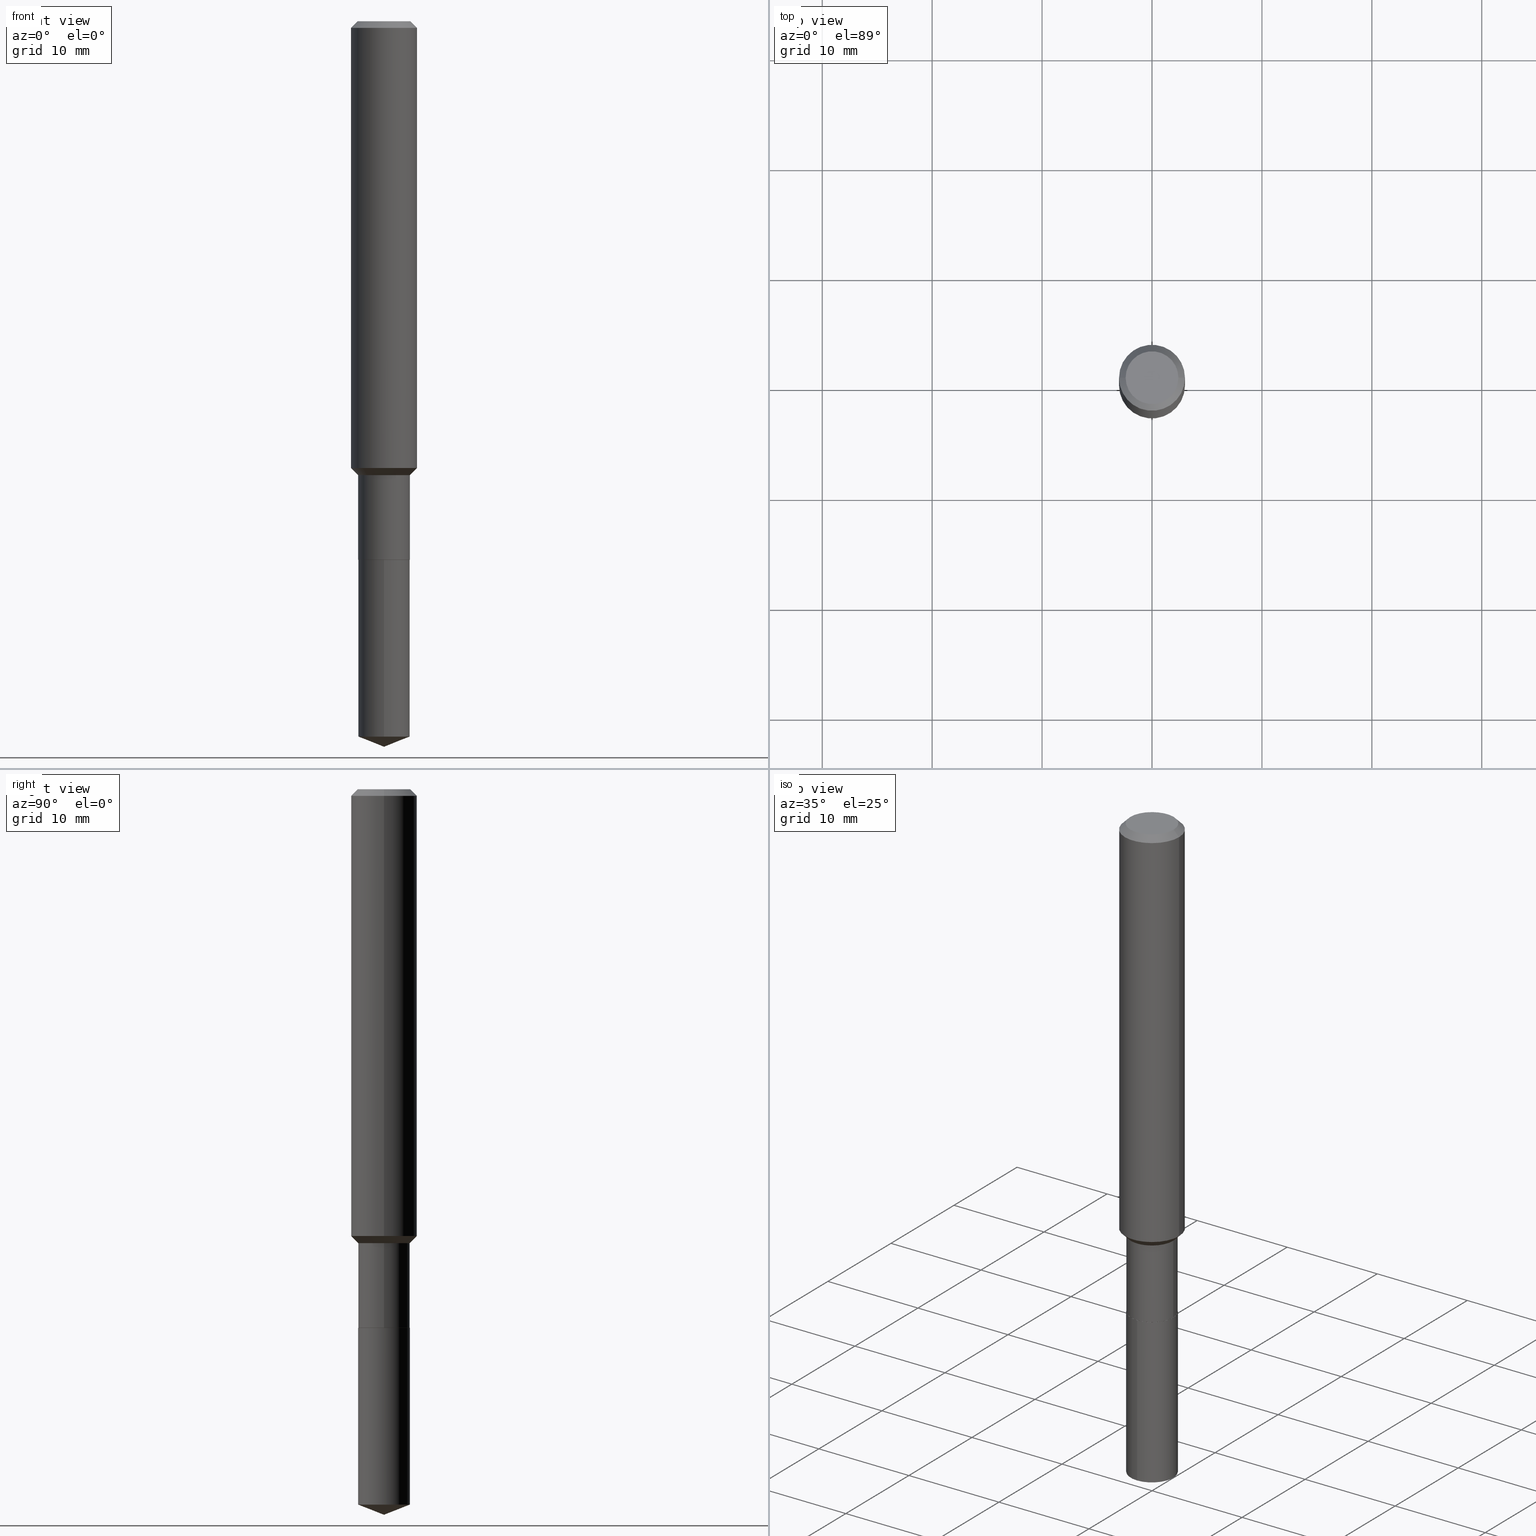
[diagram: canonical four-view strip — front | top / right | iso, engineering-drawing reading convention]
A machine part, canonical four-view strip (front | top / right | iso — engineering-drawing reading convention). The complete STEP part file that produces these views, byte-faithful:
ISO-10303-21;
HEADER;
FILE_DESCRIPTION (( 'STEP AP203' ),
    '1' );
FILE_NAME ('66417.STEP',
    '2024-04-24T22:25:56',
    ( '' ),
    ( '' ),
    'SwSTEP 2.0',
    'SolidWorks 2023',
    '' );
FILE_SCHEMA (( 'CONFIG_CONTROL_DESIGN' ));
ENDSEC;

DATA;
#1 = VERTEX_POINT ( 'NONE', #129 ) ;
#2 = MANIFOLD_SOLID_BREP ( 'Body-Move/Copy2[1]', #239 ) ;
#3 = VERTEX_POINT ( 'NONE', #203 ) ;
#4 = MANIFOLD_SOLID_BREP ( 'Body-Move/Copy2[2]', #298 ) ;
#5 = EDGE_CURVE ( 'NONE', #446, #485, #107, .T. ) ;
#6 = CARTESIAN_POINT ( 'NONE',  ( 4.717553874011746679E-29, -6.735416650762311704E-15, -1.929099999999999815 ) ) ;
#7 = PERSON_AND_ORGANIZATION ( #13, #170 ) ;
#8 = DIRECTION ( 'NONE',  ( 1.000000000000000000, -6.982962677686269866E-15, 0.000000000000000000 ) ) ;
#9 = PRODUCT_RELATED_PRODUCT_CATEGORY ( 'detail', '', ( #414 ) ) ;
#10 = FACE_OUTER_BOUND ( 'NONE', #376, .T. ) ;
#11 = DIRECTION ( 'NONE',  ( 1.000000000000000000, 0.000000000000000000, 0.000000000000000000 ) ) ;
#12 = DIRECTION ( 'NONE',  ( -2.445468806185136597E-29, 3.491481338843145583E-15, 1.000000000000000000 ) ) ;
#13 = PERSON ( 'UNSPECIFIED', 'UNSPECIFIED', 'UNSPECIFIED', ('UNSPECIFIED'), ('UNSPECIFIED'), ('UNSPECIFIED') ) ;
#14 = CARTESIAN_POINT ( 'NONE',  ( -6.459240476859167788E-16, -0.09250000000000889455, -2.561963281005616988 ) ) ;
#15 = ADVANCED_FACE ( 'NONE', ( #49 ), #130, .T. ) ;
#16 = MECHANICAL_CONTEXT ( 'NONE', #382, 'mechanical' ) ;
#17 = ORIENTED_EDGE ( 'NONE', *, *, #192, .F. ) ;
#18 = CARTESIAN_POINT ( 'NONE',  ( 4.716331139608654438E-29, -6.733670910092890989E-15, -1.928600000000000092 ) ) ;
#19 = VECTOR ( 'NONE', #30, 39.37007874015748143 ) ;
#20 = VERTEX_POINT ( 'NONE', #462 ) ;
#21 = DIRECTION ( 'NONE',  ( -6.497071151882107214E-15, -0.9304175679820226863, 0.3665012267243020760 ) ) ;
#22 = CARTESIAN_POINT ( 'NONE',  ( 4.717553874011746679E-29, -6.735416650762311704E-15, -1.929099999999999815 ) ) ;
#23 = CARTESIAN_POINT ( 'NONE',  ( -0.09447999999999998066, 7.009847083995354710E-16, -1.928573779297727792E-17 ) ) ;
#24 = ADVANCED_FACE ( 'NONE', ( #408 ), #407, .T. ) ;
#25 = FACE_OUTER_BOUND ( 'NONE', #47, .T. ) ;
#26 = AXIS2_PLACEMENT_3D ( 'NONE', #6, #81, #79 ) ;
#27 = APPROVAL_DATE_TIME ( #259, #136 ) ;
#28 = FACE_OUTER_BOUND ( 'NONE', #95, .T. ) ;
#29 = DIRECTION ( 'NONE',  ( 6.982962677686265922E-15, 1.000000000000000000, -3.491292997176496654E-15 ) ) ;
#30 = DIRECTION ( 'NONE',  ( -2.445468806185136877E-29, 3.491481338843145188E-15, 1.000000000000000000 ) ) ;
#31 = CARTESIAN_POINT ( 'NONE',  ( -0.09249999999999997113, -5.547634030747003003E-15, -1.625699999999999923 ) ) ;
#32 = EDGE_CURVE ( 'NONE', #38, #128, #150, .T. ) ;
#33 = AXIS2_PLACEMENT_3D ( 'NONE', #467, #419, #469 ) ;
#34 = AXIS2_PLACEMENT_3D ( 'NONE', #415, #61, #11 ) ;
#35 = CARTESIAN_POINT ( 'NONE',  ( 4.717553874011746679E-29, -6.735416650762311704E-15, -1.929099999999999815 ) ) ;
#36 = ORIENTED_EDGE ( 'NONE', *, *, #327, .F. ) ;
#37 = DIRECTION ( 'NONE',  ( 2.445600324468022531E-29, -3.491292997176496654E-15, -1.000000000000000000 ) ) ;
#38 = VERTEX_POINT ( 'NONE', #59 ) ;
#39 = EDGE_CURVE ( 'NONE', #260, #185, #371, .T. ) ;
#40 = CARTESIAN_POINT ( 'NONE',  ( -0.09199999999999999845, -6.081717333863018952E-15, -1.929099999999999815 ) ) ;
#41 = APPROVAL_DATE_TIME ( #404, #451 ) ;
#42 = ORIENTED_EDGE ( 'NONE', *, *, #173, .F. ) ;
#43 = AXIS2_PLACEMENT_3D ( 'NONE', #22, #317, #215 ) ;
#44 = AXIS2_PLACEMENT_3D ( 'NONE', #206, #378, #101 ) ;
#45 = CARTESIAN_POINT ( 'NONE',  ( 4.717553874011746679E-29, -6.735416650762311704E-15, -1.929099999999999815 ) ) ;
#46 = DIRECTION ( 'NONE',  ( -2.445468806185136597E-29, 3.491481338843145583E-15, 1.000000000000000000 ) ) ;
#47 = EDGE_LOOP ( 'NONE', ( #242, #399, #405, #268 ) ) ;
#48 = FACE_OUTER_BOUND ( 'NONE', #149, .T. ) ;
#49 = FACE_OUTER_BOUND ( 'NONE', #262, .T. ) ;
#50 = CC_DESIGN_PERSON_AND_ORGANIZATION_ASSIGNMENT ( #142, #251, ( #223 ) ) ;
#51 = DIRECTION ( 'NONE',  ( -1.000000000000000000, 6.982962677686265922E-15, -4.876176775795935793E-29 ) ) ;
#52 = DIRECTION ( 'NONE',  ( 1.000000000000000000, -6.982962677686266711E-15, 0.000000000000000000 ) ) ;
#53 = ORIENTED_EDGE ( 'NONE', *, *, #398, .T. ) ;
#54 = AXIS2_PLACEMENT_3D ( 'NONE', #109, #345, #381 ) ;
#55 = VECTOR ( 'NONE', #231, 39.37007874015748143 ) ;
#56 = EDGE_LOOP ( 'NONE', ( #297, #294, #441, #437 ) ) ;
#57 = DIRECTION ( 'NONE',  ( -2.445468806185136597E-29, 3.491481338843145583E-15, 1.000000000000000000 ) ) ;
#58 = FACE_OUTER_BOUND ( 'NONE', #361, .T. ) ;
#59 = CARTESIAN_POINT ( 'NONE',  ( 0.1181000000000001909, -6.411407182517665653E-15, -1.600099999999999634 ) ) ;
#60 = AXIS2_PLACEMENT_3D ( 'NONE', #35, #435, #66 ) ;
#61 = DIRECTION ( 'NONE',  ( 0.000000000000000000, 0.000000000000000000, 1.000000000000000000 ) ) ;
#62 = ORIENTED_EDGE ( 'NONE', *, *, #5, .F. ) ;
#63 = APPROVAL_ROLE ( '' ) ;
#64 = APPLICATION_CONTEXT ( 'configuration controlled 3d designs of mechanical parts and assemblies' ) ;
#65 = EDGE_CURVE ( 'NONE', #485, #194, #209, .T. ) ;
#66 = DIRECTION ( 'NONE',  ( -6.982962677686265922E-15, -1.000000000000000000, 2.953349182339743999E-15 ) ) ;
#67 = DIRECTION ( 'NONE',  ( -6.982962677686265922E-15, -1.000000000000000000, 3.498627837350058654E-15 ) ) ;
#68 = CIRCLE ( 'NONE', #210, 0.09249999999999999889 ) ;
#69 = CC_DESIGN_SECURITY_CLASSIFICATION ( #457, ( #223 ) ) ;
#70 = DIRECTION ( 'NONE',  ( -2.445468806185136597E-29, 3.491481338843145583E-15, 1.000000000000000000 ) ) ;
#71 = ADVANCED_FACE ( 'NONE', ( #28 ), #248, .T. ) ;
#72 = ORIENTED_EDGE ( 'NONE', *, *, #366, .F. ) ;
#73 = AXIS2_PLACEMENT_3D ( 'NONE', #315, #57, #97 ) ;
#74 = CIRCLE ( 'NONE', #455, 0.1180999999999999966 ) ;
#75 = CARTESIAN_POINT ( 'NONE',  ( 4.717553874011746679E-29, -6.735416650762311704E-15, -1.929099999999999815 ) ) ;
#76 = CC_DESIGN_APPROVAL ( #418, ( #306 ) ) ;
#77 = ORIENTED_EDGE ( 'NONE', *, *, #116, .T. ) ;
#78 = CC_DESIGN_PERSON_AND_ORGANIZATION_ASSIGNMENT ( #477, #108, ( #223 ) ) ;
#79 = DIRECTION ( 'NONE',  ( 1.000000000000000000, -6.982962677686265922E-15, 4.876176775795935793E-29 ) ) ;
#80 = ORIENTED_EDGE ( 'NONE', *, *, #465, .T. ) ;
#81 = DIRECTION ( 'NONE',  ( -2.438088387897960049E-29, 3.491481338843145188E-15, 1.000000000000000000 ) ) ;
#82 = ORIENTED_EDGE ( 'NONE', *, *, #447, .T. ) ;
#83 = CIRCLE ( 'NONE', #115, 0.1181000000000001909 ) ;
#84 = ADVANCED_FACE ( 'NONE', ( #358 ), #214, .T. ) ;
#85 = ORIENTED_EDGE ( 'NONE', *, *, #316, .T. ) ;
#86 = LINE ( 'NONE', #365, #131 ) ;
#87 = CALENDAR_DATE ( 2024, 24, 4 ) ;
#88 = DIRECTION ( 'NONE',  ( -2.445468806185136597E-29, 3.491481338843145583E-15, 1.000000000000000000 ) ) ;
#89 = DIRECTION ( 'NONE',  ( -2.445468806185136877E-29, 3.491481338843145188E-15, 1.000000000000000000 ) ) ;
#90 = DIRECTION ( 'NONE',  ( 2.438088387897960049E-29, -3.491481338843145188E-15, -1.000000000000000000 ) ) ;
#91 = VECTOR ( 'NONE', #383, 39.37007874015748143 ) ;
#92 = LINE ( 'NONE', #380, #91 ) ;
#93 = CARTESIAN_POINT ( 'NONE',  ( 4.716267017698007905E-46, -6.733579360998555036E-32, -1.928573779297252010E-17 ) ) ;
#94 = CARTESIAN_POINT ( 'NONE',  ( 0.09249999999999998501, -6.459240476859795918E-16, 4.510463517611239347E-30 ) ) ;
#95 = EDGE_LOOP ( 'NONE', ( #72, #359, #196, #153 ) ) ;
#96 = CARTESIAN_POINT ( 'NONE',  ( -6.459240476859323588E-16, -0.09250000000000672962, -1.929099999999999593 ) ) ;
#97 = DIRECTION ( 'NONE',  ( 1.000000000000000000, -6.982962677686266711E-15, 0.000000000000000000 ) ) ;
#98 = ORIENTED_EDGE ( 'NONE', *, *, #276, .F. ) ;
#99 = APPLICATION_PROTOCOL_DEFINITION ( 'international standard', 'config_control_design', 1994, #64 ) ;
#100 = CONICAL_SURFACE ( 'NONE', #479, 0.09199999999999999845, 0.7853981633975507526 ) ;
#101 = DIRECTION ( 'NONE',  ( -6.982962677686265922E-15, -1.000000000000000000, 3.498627837350058654E-15 ) ) ;
#102 = EDGE_CURVE ( 'NONE', #193, #397, #273, .T. ) ;
#103 = DATE_AND_TIME ( #429, #292 ) ;
#104 = COORDINATED_UNIVERSAL_TIME_OFFSET ( 5, 0, .BEHIND. ) ;
#105 = LINE ( 'NONE', #370, #222 ) ;
#106 = EDGE_CURVE ( 'NONE', #1, #458, #393, .T. ) ;
#107 = CIRCLE ( 'NONE', #252, 0.09447999999999998066 ) ;
#108 = PERSON_AND_ORGANIZATION_ROLE ( 'creator' ) ;
#109 = CARTESIAN_POINT ( 'NONE',  ( 4.716331139608654438E-29, -6.733670910092890989E-15, -1.928600000000000092 ) ) ;
#110 = LOCAL_TIME ( 18, 25, 56.00000000000000000, #409 ) ;
#111 = LINE ( 'NONE', #216, #400 ) ;
#112 = ORIENTED_EDGE ( 'NONE', *, *, #65, .F. ) ;
#113 = ORIENTED_EDGE ( 'NONE', *, *, #123, .F. ) ;
#114 = CIRCLE ( 'NONE', #178, 0.09199999999999999845 ) ;
#115 = AXIS2_PLACEMENT_3D ( 'NONE', #181, #70, #433 ) ;
#116 = EDGE_CURVE ( 'NONE', #260, #160, #349, .T. ) ;
#117 = ORIENTED_EDGE ( 'NONE', *, *, #447, .F. ) ;
#118 = FACE_OUTER_BOUND ( 'NONE', #385, .T. ) ;
#119 = CARTESIAN_POINT ( 'NONE',  ( 0.09199999999999999845, -7.377849217109447894E-15, -1.929099999999999815 ) ) ;
#120 = CARTESIAN_POINT ( 'NONE',  ( 3.975598638215176219E-29, -5.676101212557301529E-15, -1.625699999999999923 ) ) ;
#121 = ORIENTED_EDGE ( 'NONE', *, *, #32, .T. ) ;
#122 = ORIENTED_EDGE ( 'NONE', *, *, #5, .T. ) ;
#123 = EDGE_CURVE ( 'NONE', #3, #325, #318, .T. ) ;
#124 = CARTESIAN_POINT ( 'NONE',  ( 5.776197320209327532E-31, -8.246878922347559293E-17, -0.02362000000000014088 ) ) ;
#125 = CIRCLE ( 'NONE', #240, 0.09199999999999999845 ) ;
#126 = DIRECTION ( 'NONE',  ( -2.445468806185136597E-29, 3.491481338843145583E-15, 1.000000000000000000 ) ) ;
#127 = ORIENTED_EDGE ( 'NONE', *, *, #157, .T. ) ;
#128 = VERTEX_POINT ( 'NONE', #132 ) ;
#129 = CARTESIAN_POINT ( 'NONE',  ( 0.09249999999999999889, -7.379594957778870187E-15, -1.928600000000000092 ) ) ;
#130 = CONICAL_SURFACE ( 'NONE', #344, 0.09199999999999999845, 0.7853981633975507526 ) ;
#131 = VECTOR ( 'NONE', #89, 39.37007874015748143 ) ;
#132 = CARTESIAN_POINT ( 'NONE',  ( -0.1181000000000001909, -4.747568319350237616E-15, -1.600099999999999634 ) ) ;
#133 = CARTESIAN_POINT ( 'NONE',  ( 2.358133508849003952E-46, -3.366789680499277518E-32, -9.642868896486260050E-18 ) ) ;
#134 = ORIENTED_EDGE ( 'NONE', *, *, #116, .F. ) ;
#135 = LINE ( 'NONE', #96, #329 ) ;
#136 = APPROVAL ( #141, 'UNSPECIFIED' ) ;
#137 = FACE_OUTER_BOUND ( 'NONE', #188, .T. ) ;
#138 = COORDINATED_UNIVERSAL_TIME_OFFSET ( 5, 0, .BEHIND. ) ;
#139 = CONICAL_SURFACE ( 'NONE', #33, 0.1180999999999999966, 0.7853981633974460586 ) ;
#140 = CONICAL_SURFACE ( 'NONE', #324, 0.09249999999999997113, 0.7853981633974499443 ) ;
#141 = APPROVAL_STATUS ( 'not_yet_approved' ) ;
#142 = PERSON_AND_ORGANIZATION ( #13, #170 ) ;
#143 = ADVANCED_FACE ( 'NONE', ( #25 ), #139, .T. ) ;
#144 = AXIS2_PLACEMENT_3D ( 'NONE', #392, #357, #67 ) ;
#145 = EDGE_LOOP ( 'NONE', ( #112, #62, #53, #305 ) ) ;
#146 = DIRECTION ( 'NONE',  ( -2.445600324468022531E-29, 3.491292997176496654E-15, 1.000000000000000000 ) ) ;
#147 = EDGE_LOOP ( 'NONE', ( #333, #212, #310, #420 ) ) ;
#148 = EDGE_CURVE ( 'NONE', #194, #20, #284, .T. ) ;
#149 = EDGE_LOOP ( 'NONE', ( #121, #85, #331, #328 ) ) ;
#150 = CIRCLE ( 'NONE', #425, 0.1181000000000001909 ) ;
#151 = CIRCLE ( 'NONE', #253, 0.09249999999999999889 ) ;
#152 = CYLINDRICAL_SURFACE ( 'NONE', #258, 0.1181000000000001077 ) ;
#153 = ORIENTED_EDGE ( 'NONE', *, *, #102, .F. ) ;
#154 = CARTESIAN_POINT ( 'NONE',  ( 0.000000000000000000, 0.000000000000000000, 0.000000000000000000 ) ) ;
#155 = DIRECTION ( 'NONE',  ( -2.445468806185136877E-29, 3.491481338843145188E-15, 1.000000000000000000 ) ) ;
#156 = ORIENTED_EDGE ( 'NONE', *, *, #339, .F. ) ;
#157 = EDGE_CURVE ( 'NONE', #424, #219, #114, .T. ) ;
#158 = DIRECTION ( 'NONE',  ( 1.000000000000000000, -6.982962677686269866E-15, 0.000000000000000000 ) ) ;
#159 = SECURITY_CLASSIFICATION_LEVEL ( 'unclassified' ) ;
#160 = VERTEX_POINT ( 'NONE', #14 ) ;
#161 = ORIENTED_EDGE ( 'NONE', *, *, #243, .F. ) ;
#162 = ORIENTED_EDGE ( 'NONE', *, *, #366, .T. ) ;
#163 = VECTOR ( 'NONE', #395, 39.37007874015748143 ) ;
#164 = PLANE ( 'NONE',  #26 ) ;
#165 = FACE_OUTER_BOUND ( 'NONE', #468, .T. ) ;
#166 = EDGE_CURVE ( 'NONE', #397, #38, #168, .T. ) ;
#167 = CARTESIAN_POINT ( 'NONE',  ( 4.717553874011746679E-29, -6.735416650762311704E-15, -1.929099999999999815 ) ) ;
#168 = LINE ( 'NONE', #277, #360 ) ;
#169 = CALENDAR_DATE ( 2024, 24, 4 ) ;
#170 = ORGANIZATION ( 'UNSPECIFIED', 'UNSPECIFIED', '' ) ;
#171 = LOCAL_TIME ( 18, 25, 56.00000000000000000, #461 ) ;
#172 = ORIENTED_EDGE ( 'NONE', *, *, #430, .F. ) ;
#173 = EDGE_CURVE ( 'NONE', #1, #397, #207, .T. ) ;
#174 = DIRECTION ( 'NONE',  ( -1.000000000000000000, 6.982962677686266711E-15, 0.000000000000000000 ) ) ;
#175 = PERSON_AND_ORGANIZATION ( #13, #170 ) ;
#176 = DIRECTION ( 'NONE',  ( 1.000000000000000000, -6.982962677686266711E-15, 0.000000000000000000 ) ) ;
#177 = PERSON_AND_ORGANIZATION ( #13, #170 ) ;
#178 = AXIS2_PLACEMENT_3D ( 'NONE', #205, #431, #340 ) ;
#179 = AXIS2_PLACEMENT_3D ( 'NONE', #154, #191, #307 ) ;
#180 = ADVANCED_FACE ( 'NONE', ( #182 ), #394, .T. ) ;
#181 = CARTESIAN_POINT ( 'NONE',  ( 3.912994636776836330E-29, -5.586719290282915813E-15, -1.600099999999999634 ) ) ;
#182 = FACE_OUTER_BOUND ( 'NONE', #303, .T. ) ;
#183 = AXIS2_PLACEMENT_3D ( 'NONE', #464, #417, #454 ) ;
#184 =( GEOMETRIC_REPRESENTATION_CONTEXT ( 3 ) GLOBAL_UNCERTAINTY_ASSIGNED_CONTEXT ( ( #411 ) ) GLOBAL_UNIT_ASSIGNED_CONTEXT ( ( #474, #198, #208 ) ) REPRESENTATION_CONTEXT ( 'NONE', 'WORKASPACE' ) );
#185 = VERTEX_POINT ( 'NONE', #287 ) ;
#186 = CC_DESIGN_DATE_AND_TIME_ASSIGNMENT ( #272, #453, ( #457 ) ) ;
#187 = CARTESIAN_POINT ( 'NONE',  ( 6.354647883097709109E-29, -9.071775723863410041E-15, -2.598399999999999821 ) ) ;
#188 = EDGE_LOOP ( 'NONE', ( #122, #190 ) ) ;
#189 = COORDINATED_UNIVERSAL_TIME_OFFSET ( 5, 0, .BEHIND. ) ;
#190 = ORIENTED_EDGE ( 'NONE', *, *, #261, .T. ) ;
#191 = DIRECTION ( 'NONE',  ( -2.445468806185136597E-29, 3.491481338843145583E-15, 1.000000000000000000 ) ) ;
#192 = EDGE_CURVE ( 'NONE', #193, #128, #321, .T. ) ;
#193 = VERTEX_POINT ( 'NONE', #31 ) ;
#194 = VERTEX_POINT ( 'NONE', #220 ) ;
#195 = DIRECTION ( 'NONE',  ( 1.000000000000000000, -6.982962677686266711E-15, 4.876176775795935793E-29 ) ) ;
#196 = ORIENTED_EDGE ( 'NONE', *, *, #173, .T. ) ;
#197 = CARTESIAN_POINT ( 'NONE',  ( 6.572520305781553785E-16, 0.09249999999999328204, -1.929100000000000259 ) ) ;
#198 =( NAMED_UNIT ( * ) PLANE_ANGLE_UNIT ( ) SI_UNIT ( $, .RADIAN. ) );
#199 = CARTESIAN_POINT ( 'NONE',  ( -0.1180999999999999966, 7.422191030112725094E-16, -0.02362000000000014088 ) ) ;
#200 = FACE_OUTER_BOUND ( 'NONE', #56, .T. ) ;
#201 = ORIENTED_EDGE ( 'NONE', *, *, #102, .T. ) ;
#202 = CIRCLE ( 'NONE', #291, 0.09249999999999999889 ) ;
#203 = CARTESIAN_POINT ( 'NONE',  ( -6.459240476859323588E-16, -0.09250000000000672962, -1.929099999999999593 ) ) ;
#204 = FACE_OUTER_BOUND ( 'NONE', #342, .T. ) ;
#205 = CARTESIAN_POINT ( 'NONE',  ( 4.717553874011746679E-29, -6.735416650762311704E-15, -1.929099999999999815 ) ) ;
#206 = CARTESIAN_POINT ( 'NONE',  ( -8.992908317008253669E-28, 1.283803411500265385E-13, 36.77167874015748339 ) ) ;
#207 = LINE ( 'NONE', #94, #19 ) ;
#208 =( NAMED_UNIT ( * ) SI_UNIT ( $, .STERADIAN. ) SOLID_ANGLE_UNIT ( ) );
#209 = LINE ( 'NONE', #350, #384 ) ;
#210 = AXIS2_PLACEMENT_3D ( 'NONE', #18, #279, #466 ) ;
#211 = CARTESIAN_POINT ( 'NONE',  ( -0.09249999999999999889, -5.547634030747003003E-15, -1.928600000000000092 ) ) ;
#212 = ORIENTED_EDGE ( 'NONE', *, *, #192, .T. ) ;
#213 = DATE_TIME_ROLE ( 'creation_date' ) ;
#214 = CYLINDRICAL_SURFACE ( 'NONE', #245, 0.09249999999999999889 ) ;
#215 = DIRECTION ( 'NONE',  ( -6.982962677686265922E-15, -1.000000000000000000, 2.953349182339743999E-15 ) ) ;
#216 = CARTESIAN_POINT ( 'NONE',  ( 6.572520305781397985E-16, 0.09249999999999328204, -1.929100000000000259 ) ) ;
#217 = VECTOR ( 'NONE', #304, 39.37007874015748143 ) ;
#218 = EDGE_CURVE ( 'NONE', #20, #194, #74, .T. ) ;
#219 = VERTEX_POINT ( 'NONE', #119 ) ;
#220 = CARTESIAN_POINT ( 'NONE',  ( 0.1180999999999999966, -9.071566814582237199E-16, -0.02362000000000014088 ) ) ;
#221 = VECTOR ( 'NONE', #432, 39.37007874015748143 ) ;
#222 = VECTOR ( 'NONE', #155, 39.37007874015748143 ) ;
#223 = PRODUCT_DEFINITION_FORMATION_WITH_SPECIFIED_SOURCE ( 'ANY', '', #414, .NOT_KNOWN. ) ;
#224 = ORIENTED_EDGE ( 'NONE', *, *, #486, .F. ) ;
#225 = APPROVAL_STATUS ( 'not_yet_approved' ) ;
#226 = EDGE_LOOP ( 'NONE', ( #17, #201, #232, #98 ) ) ;
#227 = EDGE_CURVE ( 'NONE', #397, #193, #230, .T. ) ;
#228 = CARTESIAN_POINT ( 'NONE',  ( 0.09249999999999997113, -6.322025260243280726E-15, -1.625699999999999923 ) ) ;
#229 = SHAPE_DEFINITION_REPRESENTATION ( #254, #323 ) ;
#230 = CIRCLE ( 'NONE', #246, 0.09249999999999997113 ) ;
#231 = DIRECTION ( 'NONE',  ( -0.7071067811866199593, 7.493145998870616062E-15, 0.7071067811864750752 ) ) ;
#232 = ORIENTED_EDGE ( 'NONE', *, *, #166, .T. ) ;
#233 = DIRECTION ( 'NONE',  ( -2.445468806185136597E-29, 3.491481338843145583E-15, 1.000000000000000000 ) ) ;
#234 = DIRECTION ( 'NONE',  ( -2.445468806185136597E-29, 3.491481338843145583E-15, 1.000000000000000000 ) ) ;
#235 = LINE ( 'NONE', #199, #375 ) ;
#236 = DIRECTION ( 'NONE',  ( -2.445600324468022812E-29, 3.491292997176496654E-15, 1.000000000000000000 ) ) ;
#237 = EDGE_CURVE ( 'NONE', #325, #3, #338, .T. ) ;
#238 = CYLINDRICAL_SURFACE ( 'NONE', #470, 0.1181000000000001077 ) ;
#239 = CLOSED_SHELL ( 'NONE', ( #412, #180, #459, #84, #256 ) ) ;
#240 = AXIS2_PLACEMENT_3D ( 'NONE', #45, #490, #158 ) ;
#241 = CC_DESIGN_APPROVAL ( #451, ( #457 ) ) ;
#242 = ORIENTED_EDGE ( 'NONE', *, *, #261, .F. ) ;
#243 = EDGE_CURVE ( 'NONE', #185, #325, #111, .T. ) ;
#244 = CARTESIAN_POINT ( 'NONE',  ( 3.912994636776836330E-29, -5.586719290282915813E-15, -1.600099999999999634 ) ) ;
#245 = AXIS2_PLACEMENT_3D ( 'NONE', #353, #472, #322 ) ;
#246 = AXIS2_PLACEMENT_3D ( 'NONE', #368, #126, #176 ) ;
#247 = APPROVAL_PERSON_ORGANIZATION ( #175, #418, #63 ) ;
#248 = CYLINDRICAL_SURFACE ( 'NONE', #364, 0.09249999999999998501 ) ;
#249 = CALENDAR_DATE ( 2024, 24, 4 ) ;
#250 = CC_DESIGN_PERSON_AND_ORGANIZATION_ASSIGNMENT ( #352, #341, ( #306 ) ) ;
#251 = PERSON_AND_ORGANIZATION_ROLE ( 'design_supplier' ) ;
#252 = AXIS2_PLACEMENT_3D ( 'NONE', #93, #12, #271 ) ;
#253 = AXIS2_PLACEMENT_3D ( 'NONE', #348, #282, #285 ) ;
#254 = PRODUCT_DEFINITION_SHAPE ( 'NONE', 'NONE',  #306 ) ;
#255 = FACE_OUTER_BOUND ( 'NONE', #295, .T. ) ;
#256 = ADVANCED_FACE ( 'NONE', ( #255 ), #293, .F. ) ;
#257 = ORIENTED_EDGE ( 'NONE', *, *, #486, .T. ) ;
#258 = AXIS2_PLACEMENT_3D ( 'NONE', #445, #460, #311 ) ;
#259 = DATE_AND_TIME ( #249, #347 ) ;
#260 = VERTEX_POINT ( 'NONE', #187 ) ;
#261 = EDGE_CURVE ( 'NONE', #485, #446, #426, .T. ) ;
#262 = EDGE_LOOP ( 'NONE', ( #442, #264, #374, #117 ) ) ;
#263 = CALENDAR_DATE ( 2024, 24, 4 ) ;
#264 = ORIENTED_EDGE ( 'NONE', *, *, #327, .T. ) ;
#265 = DIRECTION ( 'NONE',  ( 2.445468806185136597E-29, -3.491481338843145583E-15, -1.000000000000000000 ) ) ;
#266 = CARTESIAN_POINT ( 'NONE',  ( 5.776197320209327532E-31, -8.246878922347559293E-17, -0.02362000000000014088 ) ) ;
#267 = ORIENTED_EDGE ( 'NONE', *, *, #157, .F. ) ;
#268 = ORIENTED_EDGE ( 'NONE', *, *, #398, .F. ) ;
#269 = CC_DESIGN_PERSON_AND_ORGANIZATION_ASSIGNMENT ( #7, #309, ( #457 ) ) ;
#270 = CARTESIAN_POINT ( 'NONE',  ( -0.1181000000000001077, 8.391509709326790846E-16, -5.809262341591049389E-30 ) ) ;
#271 = DIRECTION ( 'NONE',  ( 1.000000000000000000, -6.982962677686267499E-15, 4.875432709231658792E-29 ) ) ;
#272 = DATE_AND_TIME ( #87, #110 ) ;
#273 = CIRCLE ( 'NONE', #413, 0.09249999999999997113 ) ;
#274 = ORIENTED_EDGE ( 'NONE', *, *, #227, .F. ) ;
#275 = AXIS2_PLACEMENT_3D ( 'NONE', #330, #488, #302 ) ;
#276 = EDGE_CURVE ( 'NONE', #128, #38, #83, .T. ) ;
#277 = CARTESIAN_POINT ( 'NONE',  ( 0.09249999999999997113, -6.322025260243280726E-15, -1.625699999999999923 ) ) ;
#278 = DIRECTION ( 'NONE',  ( 1.000000000000000000, -6.982962677686269077E-15, 0.000000000000000000 ) ) ;
#279 = DIRECTION ( 'NONE',  ( -2.445468806185136597E-29, 3.491481338843145583E-15, 1.000000000000000000 ) ) ;
#280 = PERSON_AND_ORGANIZATION ( #13, #170 ) ;
#281 = DIRECTION ( 'NONE',  ( 1.000000000000000000, -6.982962677686266711E-15, 4.876176775795935232E-29 ) ) ;
#282 = DIRECTION ( 'NONE',  ( -2.445600324468022812E-29, 3.491292997176496654E-15, 1.000000000000000000 ) ) ;
#283 = PLANE ( 'NONE',  #319 ) ;
#284 = CIRCLE ( 'NONE', #73, 0.1180999999999999966 ) ;
#285 = DIRECTION ( 'NONE',  ( -6.982962677686265922E-15, -1.000000000000000000, 5.906698364679487997E-15 ) ) ;
#286 = APPROVAL_ROLE ( '' ) ;
#287 = CARTESIAN_POINT ( 'NONE',  ( 6.572520305781548854E-16, 0.09249999999999103384, -2.561963281005617876 ) ) ;
#288 = CARTESIAN_POINT ( 'NONE',  ( -0.09249999999999997113, -5.018849181979209456E-15, -1.625699999999999923 ) ) ;
#289 = DIRECTION ( 'NONE',  ( -2.445468806185136597E-29, 3.491481338843145583E-15, 1.000000000000000000 ) ) ;
#290 = CC_DESIGN_PERSON_AND_ORGANIZATION_ASSIGNMENT ( #280, #421, ( #414 ) ) ;
#291 = AXIS2_PLACEMENT_3D ( 'NONE', #336, #236, #373 ) ;
#292 = LOCAL_TIME ( 18, 25, 56.00000000000000000, #138 ) ;
#293 = PLANE ( 'NONE',  #308 ) ;
#294 = ORIENTED_EDGE ( 'NONE', *, *, #276, .T. ) ;
#295 = EDGE_LOOP ( 'NONE', ( #363, #367 ) ) ;
#296 = DIRECTION ( 'NONE',  ( 1.000000000000000000, -6.982962677686267499E-15, 4.875432709231658792E-29 ) ) ;
#297 = ORIENTED_EDGE ( 'NONE', *, *, #316, .F. ) ;
#298 = CLOSED_SHELL ( 'NONE', ( #15, #143, #386, #24, #406, #71, #334, #351, #438, #356, #391, #481 ) ) ;
#299 = AXIS2_PLACEMENT_3D ( 'NONE', #124, #265, #174 ) ;
#300 = LOCAL_TIME ( 18, 25, 56.00000000000000000, #189 ) ;
#301 = ORIENTED_EDGE ( 'NONE', *, *, #106, .T. ) ;
#302 = DIRECTION ( 'NONE',  ( -6.982962677686265922E-15, -1.000000000000000000, 2.953349182339743999E-15 ) ) ;
#303 = EDGE_LOOP ( 'NONE', ( #134, #410, #489 ) ) ;
#304 = DIRECTION ( 'NONE',  ( -2.445468806185136877E-29, 3.491481338843145188E-15, 1.000000000000000000 ) ) ;
#305 = ORIENTED_EDGE ( 'NONE', *, *, #218, .T. ) ;
#306 = PRODUCT_DEFINITION ( 'UNKNOWN', '', #223, #422 ) ;
#307 = DIRECTION ( 'NONE',  ( 1.000000000000000000, -6.982962677686266711E-15, 4.876176775795935232E-29 ) ) ;
#308 = AXIS2_PLACEMENT_3D ( 'NONE', #75, #37, #29 ) ;
#309 = PERSON_AND_ORGANIZATION_ROLE ( 'classification_officer' ) ;
#310 = ORIENTED_EDGE ( 'NONE', *, *, #32, .F. ) ;
#311 = DIRECTION ( 'NONE',  ( 1.000000000000000000, -6.982962677686266711E-15, 4.876176775795935793E-29 ) ) ;
#312 = EDGE_CURVE ( 'NONE', #38, #194, #105, .T. ) ;
#313 = APPROVAL_DATE_TIME ( #103, #418 ) ;
#314 = CARTESIAN_POINT ( 'NONE',  ( 4.717553874011746679E-29, -6.735416650762311704E-15, -1.929099999999999815 ) ) ;
#315 = CARTESIAN_POINT ( 'NONE',  ( 5.776197320209327532E-31, -8.246878922347559293E-17, -0.02362000000000014088 ) ) ;
#316 = EDGE_CURVE ( 'NONE', #128, #20, #449, .T. ) ;
#317 = DIRECTION ( 'NONE',  ( -2.445600324468022812E-29, 3.491292997176496654E-15, 1.000000000000000000 ) ) ;
#318 = CIRCLE ( 'NONE', #43, 0.09249999999999999889 ) ;
#319 = AXIS2_PLACEMENT_3D ( 'NONE', #133, #90, #51 ) ;
#320 = CARTESIAN_POINT ( 'NONE',  ( 0.000000000000000000, 0.000000000000000000, 0.000000000000000000 ) ) ;
#321 = LINE ( 'NONE', #288, #163 ) ;
#322 = DIRECTION ( 'NONE',  ( -6.982962677686265922E-15, -1.000000000000000000, 2.953349182339743999E-15 ) ) ;
#323 = ADVANCED_BREP_SHAPE_REPRESENTATION ( '66417', ( #2, #4, #34 ), #184 ) ;
#324 = AXIS2_PLACEMENT_3D ( 'NONE', #120, #46, #52 ) ;
#325 = VERTEX_POINT ( 'NONE', #197 ) ;
#326 = ORIENTED_EDGE ( 'NONE', *, *, #339, .T. ) ;
#327 = EDGE_CURVE ( 'NONE', #424, #458, #403, .T. ) ;
#328 = ORIENTED_EDGE ( 'NONE', *, *, #312, .F. ) ;
#329 = VECTOR ( 'NONE', #146, 39.37007874015748143 ) ;
#330 = CARTESIAN_POINT ( 'NONE',  ( 4.717553874011746679E-29, -6.735416650762311704E-15, -1.929099999999999815 ) ) ;
#331 = ORIENTED_EDGE ( 'NONE', *, *, #148, .F. ) ;
#332 = CARTESIAN_POINT ( 'NONE',  ( 0.000000000000000000, 0.000000000000000000, 0.000000000000000000 ) ) ;
#333 = ORIENTED_EDGE ( 'NONE', *, *, #227, .T. ) ;
#334 = ADVANCED_FACE ( 'NONE', ( #487 ), #140, .T. ) ;
#335 = DIRECTION ( 'NONE',  ( -0.7071067811865459074, 2.468850131082240100E-15, -0.7071067811865491270 ) ) ;
#336 = CARTESIAN_POINT ( 'NONE',  ( 6.265284519382982955E-29, -8.944927791907365076E-15, -2.561963281005617432 ) ) ;
#337 = VECTOR ( 'NONE', #21, 39.37007874015748143 ) ;
#338 = CIRCLE ( 'NONE', #60, 0.09249999999999999889 ) ;
#339 = EDGE_CURVE ( 'NONE', #185, #160, #202, .T. ) ;
#340 = DIRECTION ( 'NONE',  ( 1.000000000000000000, -6.982962677686269866E-15, 0.000000000000000000 ) ) ;
#341 = PERSON_AND_ORGANIZATION_ROLE ( 'creator' ) ;
#342 = EDGE_LOOP ( 'NONE', ( #36, #127, #82, #450 ) ) ;
#343 = DIMENSIONAL_EXPONENTS ( 1.000000000000000000, 0.000000000000000000, 0.000000000000000000, 0.000000000000000000, 0.000000000000000000, 0.000000000000000000, 0.000000000000000000 ) ;
#344 = AXIS2_PLACEMENT_3D ( 'NONE', #167, #88, #8 ) ;
#345 = DIRECTION ( 'NONE',  ( -2.445468806185136597E-29, 3.491481338843145583E-15, 1.000000000000000000 ) ) ;
#346 = AXIS2_PLACEMENT_3D ( 'NONE', #484, #354, #296 ) ;
#347 = LOCAL_TIME ( 18, 25, 56.00000000000000000, #104 ) ;
#348 = CARTESIAN_POINT ( 'NONE',  ( 6.265284519382982955E-29, -8.944927791907365076E-15, -2.561963281005617432 ) ) ;
#349 = LINE ( 'NONE', #390, #337 ) ;
#350 = CARTESIAN_POINT ( 'NONE',  ( 0.1180999999999999966, -8.926936027602933910E-16, -0.02362000000000014088 ) ) ;
#351 = ADVANCED_FACE ( 'NONE', ( #200 ), #152, .T. ) ;
#352 = PERSON_AND_ORGANIZATION ( #13, #170 ) ;
#353 = CARTESIAN_POINT ( 'NONE',  ( 4.717553874011746679E-29, -6.735416650762311704E-15, -1.929099999999999815 ) ) ;
#354 = DIRECTION ( 'NONE',  ( -2.445468806185136597E-29, 3.491481338843145583E-15, 1.000000000000000000 ) ) ;
#355 = CONICAL_SURFACE ( 'NONE', #44, 99.94676754583841216, 1.195550537616114184 ) ;
#356 = ADVANCED_FACE ( 'NONE', ( #137 ), #283, .F. ) ;
#357 = DIRECTION ( 'NONE',  ( -2.445600324468022812E-29, 3.491292997176496654E-15, 1.000000000000000000 ) ) ;
#358 = FACE_OUTER_BOUND ( 'NONE', #436, .T. ) ;
#359 = ORIENTED_EDGE ( 'NONE', *, *, #475, .T. ) ;
#360 = VECTOR ( 'NONE', #416, 39.37007874015748143 ) ;
#361 = EDGE_LOOP ( 'NONE', ( #439, #77, #156 ) ) ;
#362 = DIRECTION ( 'NONE',  ( -2.445468806185136597E-29, 3.491481338843145583E-15, 1.000000000000000000 ) ) ;
#363 = ORIENTED_EDGE ( 'NONE', *, *, #123, .T. ) ;
#364 = AXIS2_PLACEMENT_3D ( 'NONE', #320, #389, #281 ) ;
#365 = CARTESIAN_POINT ( 'NONE',  ( -0.09249999999999998501, 6.572520305780925654E-16, -4.550014958485786769E-30 ) ) ;
#366 = EDGE_CURVE ( 'NONE', #458, #193, #86, .T. ) ;
#367 = ORIENTED_EDGE ( 'NONE', *, *, #237, .T. ) ;
#368 = CARTESIAN_POINT ( 'NONE',  ( 3.975598638215176219E-29, -5.676101212557301529E-15, -1.625699999999999923 ) ) ;
#369 = PERSON_AND_ORGANIZATION ( #13, #170 ) ;
#370 = CARTESIAN_POINT ( 'NONE',  ( 0.1181000000000001077, -8.246878922347488542E-16, 5.758764772215005345E-30 ) ) ;
#371 = LINE ( 'NONE', #396, #221 ) ;
#372 = CYLINDRICAL_SURFACE ( 'NONE', #179, 0.09249999999999998501 ) ;
#373 = DIRECTION ( 'NONE',  ( -6.982962677686265922E-15, -1.000000000000000000, 5.906698364679487997E-15 ) ) ;
#374 = ORIENTED_EDGE ( 'NONE', *, *, #106, .F. ) ;
#375 = VECTOR ( 'NONE', #335, 39.37007874015748143 ) ;
#376 = EDGE_LOOP ( 'NONE', ( #301, #162, #274, #42 ) ) ;
#377 = CC_DESIGN_DATE_AND_TIME_ASSIGNMENT ( #379, #213, ( #306 ) ) ;
#378 = DIRECTION ( 'NONE',  ( -2.445600324468022812E-29, 3.491292997176496654E-15, 1.000000000000000000 ) ) ;
#379 = DATE_AND_TIME ( #169, #171 ) ;
#380 = CARTESIAN_POINT ( 'NONE',  ( 0.09199999999999999845, -7.377849217109447894E-15, -1.929099999999999815 ) ) ;
#381 = DIRECTION ( 'NONE',  ( 1.000000000000000000, -6.982962677686265133E-15, 0.000000000000000000 ) ) ;
#382 = APPLICATION_CONTEXT ( 'configuration controlled 3d designs of mechanical parts and assemblies' ) ;
#383 = DIRECTION ( 'NONE',  ( 0.7071067811866199593, -2.468850131083015945E-15, 0.7071067811864750752 ) ) ;
#384 = VECTOR ( 'NONE', #427, 39.37007874015748143 ) ;
#385 = EDGE_LOOP ( 'NONE', ( #172, #267 ) ) ;
#386 = ADVANCED_FACE ( 'NONE', ( #48 ), #238, .T. ) ;
#387 = APPROVAL_STATUS ( 'not_yet_approved' ) ;
#388 = DIRECTION ( 'NONE',  ( 1.000000000000000000, -6.982962677686269866E-15, 0.000000000000000000 ) ) ;
#389 = DIRECTION ( 'NONE',  ( -2.445468806185136597E-29, 3.491481338843145583E-15, 1.000000000000000000 ) ) ;
#390 = CARTESIAN_POINT ( 'NONE',  ( 6.354140459258678806E-29, -9.072502383681672387E-15, -2.598399999999999821 ) ) ;
#391 = ADVANCED_FACE ( 'NONE', ( #118 ), #164, .F. ) ;
#392 = CARTESIAN_POINT ( 'NONE',  ( -8.992908317008253669E-28, 1.283803411500265385E-13, 36.77167874015748339 ) ) ;
#393 = CIRCLE ( 'NONE', #54, 0.09249999999999999889 ) ;
#394 = CONICAL_SURFACE ( 'NONE', #144, 99.94676754583841216, 1.195550537616114184 ) ;
#395 = DIRECTION ( 'NONE',  ( -0.7071067811865486830, 7.493145998870358893E-15, 0.7071067811865463515 ) ) ;
#396 = CARTESIAN_POINT ( 'NONE',  ( 6.354652332605812611E-29, -9.071775723863410041E-15, -2.598399999999999821 ) ) ;
#397 = VERTEX_POINT ( 'NONE', #228 ) ;
#398 = EDGE_CURVE ( 'NONE', #446, #20, #235, .T. ) ;
#399 = ORIENTED_EDGE ( 'NONE', *, *, #65, .T. ) ;
#400 = VECTOR ( 'NONE', #478, 39.37007874015748143 ) ;
#401 = APPROVAL_PERSON_ORGANIZATION ( #369, #451, #444 ) ;
#402 = DIRECTION ( 'NONE',  ( 1.000000000000000000, -6.982962677686266711E-15, 0.000000000000000000 ) ) ;
#403 = LINE ( 'NONE', #40, #55 ) ;
#404 = DATE_AND_TIME ( #263, #300 ) ;
#405 = ORIENTED_EDGE ( 'NONE', *, *, #148, .T. ) ;
#406 = ADVANCED_FACE ( 'NONE', ( #10 ), #372, .T. ) ;
#407 = CONICAL_SURFACE ( 'NONE', #183, 0.09249999999999997113, 0.7853981633974499443 ) ;
#408 = FACE_OUTER_BOUND ( 'NONE', #147, .T. ) ;
#409 = COORDINATED_UNIVERSAL_TIME_OFFSET ( 5, 0, .BEHIND. ) ;
#410 = ORIENTED_EDGE ( 'NONE', *, *, #39, .T. ) ;
#411 = UNCERTAINTY_MEASURE_WITH_UNIT (LENGTH_MEASURE( 1.000000000000000082E-05 ), #474, 'distance_accuracy_value', 'NONE');
#412 = ADVANCED_FACE ( 'NONE', ( #165 ), #456, .T. ) ;
#413 = AXIS2_PLACEMENT_3D ( 'NONE', #476, #289, #434 ) ;
#414 = PRODUCT ( '66417', '66417', '', ( #16 ) ) ;
#415 = CARTESIAN_POINT ( 'NONE',  ( 0.000000000000000000, 0.000000000000000000, 0.000000000000000000 ) ) ;
#416 = DIRECTION ( 'NONE',  ( 0.7071067811865486830, -2.468850131082269288E-15, 0.7071067811865463515 ) ) ;
#417 = DIRECTION ( 'NONE',  ( -2.445468806185136597E-29, 3.491481338843145583E-15, 1.000000000000000000 ) ) ;
#418 = APPROVAL ( #387, 'UNSPECIFIED' ) ;
#419 = DIRECTION ( 'NONE',  ( 2.445468806185136597E-29, -3.491481338843145583E-15, -1.000000000000000000 ) ) ;
#420 = ORIENTED_EDGE ( 'NONE', *, *, #166, .F. ) ;
#421 = PERSON_AND_ORGANIZATION_ROLE ( 'design_owner' ) ;
#422 = DESIGN_CONTEXT ( 'detailed design', #64, 'design' ) ;
#423 = DIRECTION ( 'NONE',  ( -2.445468806185136597E-29, 3.491481338843145583E-15, 1.000000000000000000 ) ) ;
#424 = VERTEX_POINT ( 'NONE', #448 ) ;
#425 = AXIS2_PLACEMENT_3D ( 'NONE', #244, #234, #278 ) ;
#426 = CIRCLE ( 'NONE', #346, 0.09447999999999998066 ) ;
#427 = DIRECTION ( 'NONE',  ( 0.7071067811865459074, -7.319954787623249734E-15, -0.7071067811865491270 ) ) ;
#428 = CARTESIAN_POINT ( 'NONE',  ( 0.09447999999999998066, -7.704367267948738690E-16, -1.928573779296752193E-17 ) ) ;
#429 = CALENDAR_DATE ( 2024, 24, 4 ) ;
#430 = EDGE_CURVE ( 'NONE', #219, #424, #125, .T. ) ;
#431 = DIRECTION ( 'NONE',  ( -2.445468806185136597E-29, 3.491481338843145583E-15, 1.000000000000000000 ) ) ;
#432 = DIRECTION ( 'NONE',  ( 6.611014441532053178E-15, 0.9304175679820252398, 0.3665012267242954702 ) ) ;
#433 = DIRECTION ( 'NONE',  ( 1.000000000000000000, -6.982962677686269077E-15, 0.000000000000000000 ) ) ;
#434 = DIRECTION ( 'NONE',  ( 1.000000000000000000, -6.982962677686266711E-15, 0.000000000000000000 ) ) ;
#435 = DIRECTION ( 'NONE',  ( -2.445600324468022812E-29, 3.491292997176496654E-15, 1.000000000000000000 ) ) ;
#436 = EDGE_LOOP ( 'NONE', ( #161, #326, #257, #480 ) ) ;
#437 = ORIENTED_EDGE ( 'NONE', *, *, #218, .F. ) ;
#438 = ADVANCED_FACE ( 'NONE', ( #452 ), #463, .T. ) ;
#439 = ORIENTED_EDGE ( 'NONE', *, *, #39, .F. ) ;
#440 = LENGTH_MEASURE_WITH_UNIT ( LENGTH_MEASURE( 0.02539999999999999897 ), #483 );
#441 = ORIENTED_EDGE ( 'NONE', *, *, #312, .T. ) ;
#442 = ORIENTED_EDGE ( 'NONE', *, *, #430, .T. ) ;
#443 = CC_DESIGN_APPROVAL ( #136, ( #223 ) ) ;
#444 = APPROVAL_ROLE ( '' ) ;
#445 = CARTESIAN_POINT ( 'NONE',  ( 0.000000000000000000, 0.000000000000000000, 0.000000000000000000 ) ) ;
#446 = VERTEX_POINT ( 'NONE', #23 ) ;
#447 = EDGE_CURVE ( 'NONE', #219, #1, #92, .T. ) ;
#448 = CARTESIAN_POINT ( 'NONE',  ( -0.09199999999999999845, -6.079068106688908540E-15, -1.929099999999999815 ) ) ;
#449 = LINE ( 'NONE', #270, #217 ) ;
#450 = ORIENTED_EDGE ( 'NONE', *, *, #475, .F. ) ;
#451 = APPROVAL ( #225, 'UNSPECIFIED' ) ;
#452 = FACE_OUTER_BOUND ( 'NONE', #145, .T. ) ;
#453 = DATE_TIME_ROLE ( 'classification_date' ) ;
#454 = DIRECTION ( 'NONE',  ( 1.000000000000000000, -6.982962677686266711E-15, 0.000000000000000000 ) ) ;
#455 = AXIS2_PLACEMENT_3D ( 'NONE', #266, #233, #402 ) ;
#456 = CYLINDRICAL_SURFACE ( 'NONE', #275, 0.09249999999999999889 ) ;
#457 = SECURITY_CLASSIFICATION ( '', '', #159 ) ;
#458 = VERTEX_POINT ( 'NONE', #211 ) ;
#459 = ADVANCED_FACE ( 'NONE', ( #58 ), #355, .T. ) ;
#460 = DIRECTION ( 'NONE',  ( -2.445468806185136597E-29, 3.491481338843145583E-15, 1.000000000000000000 ) ) ;
#461 = COORDINATED_UNIVERSAL_TIME_OFFSET ( 5, 0, .BEHIND. ) ;
#462 = CARTESIAN_POINT ( 'NONE',  ( -0.1180999999999999966, -1.995443068820515466E-15, -0.02362000000000014088 ) ) ;
#463 = CONICAL_SURFACE ( 'NONE', #299, 0.1180999999999999966, 0.7853981633974460586 ) ;
#464 = CARTESIAN_POINT ( 'NONE',  ( 3.975598638215176219E-29, -5.676101212557301529E-15, -1.625699999999999923 ) ) ;
#465 = EDGE_CURVE ( 'NONE', #160, #185, #151, .T. ) ;
#466 = DIRECTION ( 'NONE',  ( 1.000000000000000000, -6.982962677686265133E-15, 0.000000000000000000 ) ) ;
#467 = CARTESIAN_POINT ( 'NONE',  ( 5.776197320209327532E-31, -8.246878922347559293E-17, -0.02362000000000014088 ) ) ;
#468 = EDGE_LOOP ( 'NONE', ( #80, #482, #113, #224 ) ) ;
#469 = DIRECTION ( 'NONE',  ( -1.000000000000000000, 6.982962677686266711E-15, 0.000000000000000000 ) ) ;
#470 = AXIS2_PLACEMENT_3D ( 'NONE', #332, #362, #195 ) ;
#471 = APPLICATION_PROTOCOL_DEFINITION ( 'international standard', 'config_control_design', 1994, #382 ) ;
#472 = DIRECTION ( 'NONE',  ( -2.445600324468022812E-29, 3.491292997176496654E-15, 1.000000000000000000 ) ) ;
#473 = APPROVAL_PERSON_ORGANIZATION ( #177, #136, #286 ) ;
#474 =( CONVERSION_BASED_UNIT ( 'INCH', #440 ) LENGTH_UNIT ( ) NAMED_UNIT ( #343 ) );
#475 = EDGE_CURVE ( 'NONE', #458, #1, #68, .T. ) ;
#476 = CARTESIAN_POINT ( 'NONE',  ( 3.975598638215176219E-29, -5.676101212557301529E-15, -1.625699999999999923 ) ) ;
#477 = PERSON_AND_ORGANIZATION ( #13, #170 ) ;
#478 = DIRECTION ( 'NONE',  ( -2.445600324468022531E-29, 3.491292997176496654E-15, 1.000000000000000000 ) ) ;
#479 = AXIS2_PLACEMENT_3D ( 'NONE', #314, #423, #388 ) ;
#480 = ORIENTED_EDGE ( 'NONE', *, *, #237, .F. ) ;
#481 = ADVANCED_FACE ( 'NONE', ( #204 ), #100, .T. ) ;
#482 = ORIENTED_EDGE ( 'NONE', *, *, #243, .T. ) ;
#483 =( LENGTH_UNIT ( ) NAMED_UNIT ( * ) SI_UNIT ( $, .METRE. ) );
#484 = CARTESIAN_POINT ( 'NONE',  ( 4.716267017698007905E-46, -6.733579360998555036E-32, -1.928573779297252010E-17 ) ) ;
#485 = VERTEX_POINT ( 'NONE', #428 ) ;
#486 = EDGE_CURVE ( 'NONE', #160, #3, #135, .T. ) ;
#487 = FACE_OUTER_BOUND ( 'NONE', #226, .T. ) ;
#488 = DIRECTION ( 'NONE',  ( -2.445600324468022812E-29, 3.491292997176496654E-15, 1.000000000000000000 ) ) ;
#489 = ORIENTED_EDGE ( 'NONE', *, *, #465, .F. ) ;
#490 = DIRECTION ( 'NONE',  ( -2.445468806185136597E-29, 3.491481338843145583E-15, 1.000000000000000000 ) ) ;
ENDSEC;
END-ISO-10303-21;
